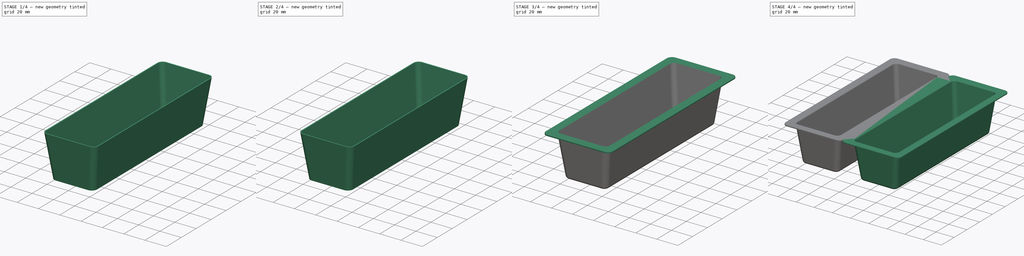
[diagram: build sequence overview — one tinted view per stage of 4, left to right]
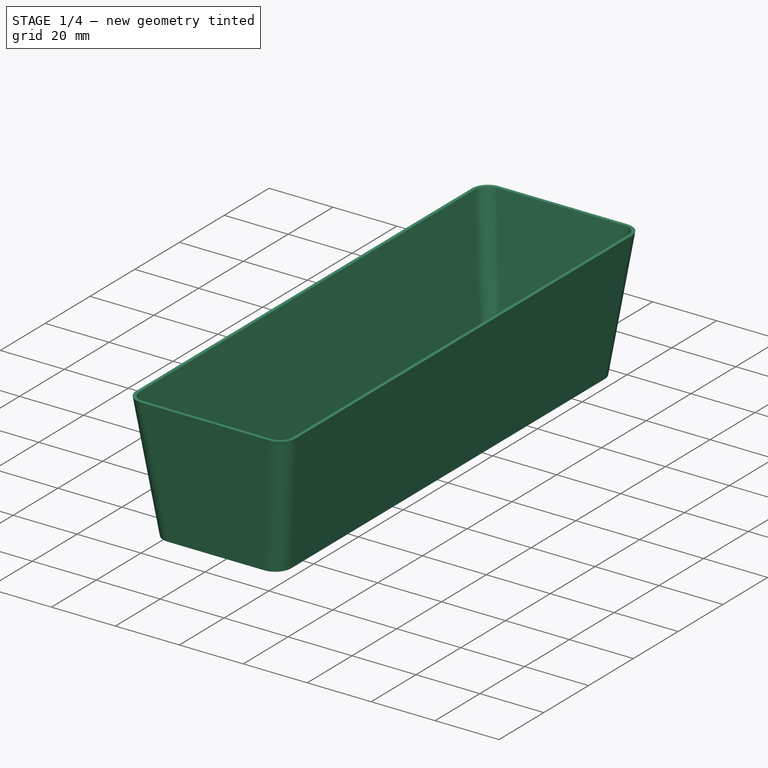
[diagram: stage 1 of 4 — iso view after this stage's code; geometry added in this stage tinted green]
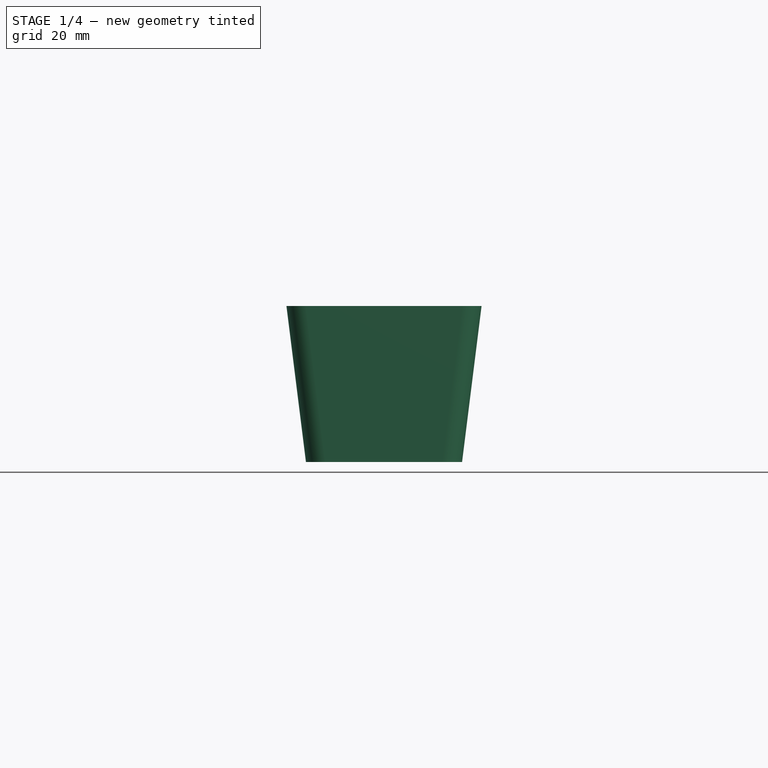
[diagram: stage 1 of 4 — front view after this stage's code; geometry added in this stage tinted green]
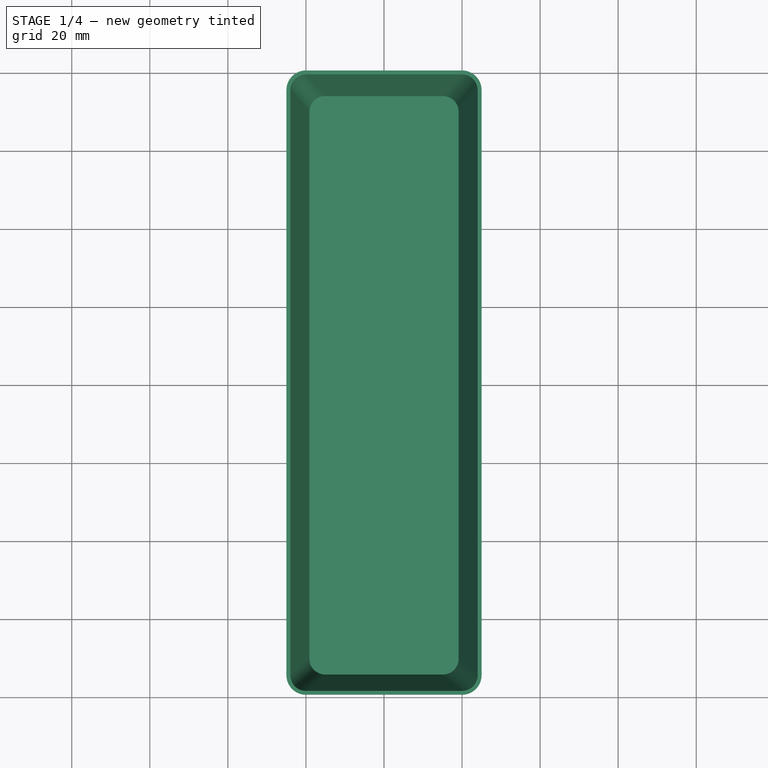
[diagram: stage 1 of 4 — top view after this stage's code; geometry added in this stage tinted green]
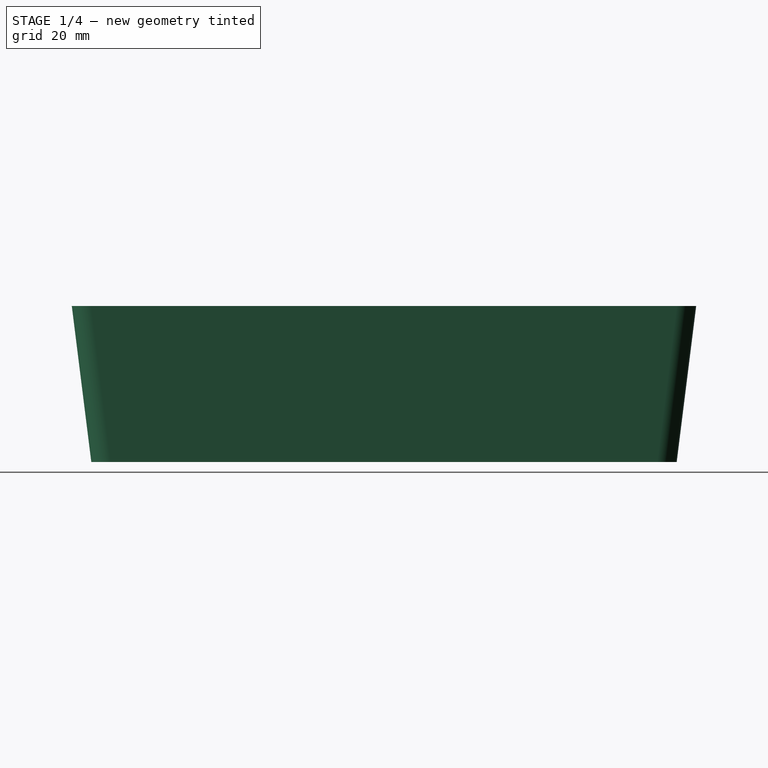
[diagram: stage 1 of 4 — right view after this stage's code; geometry added in this stage tinted green]
FCSTD DOCUMENT  (FreeCAD 0.22R36807 (Git))
Label: pottle
License: All rights reserved
LicenseURL: http://en.wikipedia.org/wiki/All_rights_reserved
objects: Sketcher::SketchObject×3, PartDesign::FeatureSubtractivePython×3, PartDesign::Fillet×2, PartDesign::AdditiveLoft×1, PartDesign::Thickness×1, PartDesign::SubShapeBinder×1, PartDesign::Pad×1, PartDesign::Body×1, Part::FeaturePython×1
note: 22 computed .brp shape members not serialized (recipe doc carries the construction recipe); baked Part::Feature solids carry a one-line shape summary decoded from their .brp

FEATURE [Sketcher::SketchObject] Sketch
  AttachmentSupport = -> [XY_Plane]
  FullyConstrained = true
  MapMode = 5
  sketch-geometry (10):
    g0: LineSegment StartX=-15 StartY=-75 StartZ=0 EndX=15 EndY=-75 EndZ=0
    g1: LineSegment StartX=20 StartY=-70 StartZ=0 EndX=20 EndY=70 EndZ=0
    g2: LineSegment StartX=15 StartY=75 StartZ=0 EndX=-15 EndY=75 EndZ=0
    g3: LineSegment StartX=-20 StartY=70 StartZ=0 EndX=-20 EndY=-70 EndZ=0
    g4: ArcOfCircle CenterX=-15 CenterY=-70 CenterZ=0 NormalX=0 NormalY=0 NormalZ=1 AngleXU=0 Radius=5 StartAngle=3.14159 EndAngle=4.71239
    g5: ArcOfCircle CenterX=15 CenterY=-70 CenterZ=0 NormalX=0 NormalY=0 NormalZ=1 AngleXU=0 Radius=5 StartAngle=4.71239 EndAngle=6.28319
    g6: ArcOfCircle CenterX=15 CenterY=70 CenterZ=0 NormalX=0 NormalY=0 NormalZ=1 AngleXU=0 Radius=5 StartAngle=1.056e-13 EndAngle=1.5708
    g7: ArcOfCircle CenterX=-15 CenterY=70 CenterZ=0 NormalX=0 NormalY=0 NormalZ=1 AngleXU=0 Radius=5 StartAngle=1.5708 EndAngle=3.14159
    g8: GeomPoint X=-20 Y=-75 Z=0
    g9: GeomPoint X=20 Y=75 Z=0
  constraints (23):
    c: Tangent(g0,g4) = -1.5708
    c: Tangent(g0,g5) = -1.5708
    c: Tangent(g1,g5) = -1.5708
    c: Tangent(g1,g6) = -1.5708
    c: Tangent(g2,g6) = -1.5708
    c: Tangent(g2,g7) = -1.5708
    c: Tangent(g3,g7) = -1.5708
    c: Tangent(g3,g4) = -1.5708
    c: Horizontal(g0)
    c: Horizontal(g2)
    c: Vertical(g1)
    c: Vertical(g3)
    c: Equal(g4,g5)
    c: Equal(g5,g6)
    c: Equal(g6,g7)
    c: PointOnObject(g8,g0)
    c: PointOnObject(g8,g3)
    c: PointOnObject(g9,g1)
    c: PointOnObject(g9,g2)
    c: Symmetric(g8,g9,g-1)
    c: Radius(g6) = 5
    c: DistanceX(g8,g9) = 40
    c: DistanceY(g8,g9) = 150
FEATURE [Sketcher::SketchObject] Sketch001
  AttachmentOffset = pos=(0,0,40) rot=(0,0,1;0rad)
  AttachmentSupport = -> [XY_Plane]
  FullyConstrained = true
  MapMode = 5
  Placement = pos=(0,0,40) rot=(0,0,1;0rad)
  sketch-geometry (10):
    g0: LineSegment StartX=-20 StartY=-80 StartZ=0 EndX=20 EndY=-80 EndZ=0
    g1: LineSegment StartX=25 StartY=-75 StartZ=0 EndX=25 EndY=75 EndZ=0
    g2: LineSegment StartX=20 StartY=80 StartZ=0 EndX=-20 EndY=80 EndZ=0
    g3: LineSegment StartX=-25 StartY=75 StartZ=0 EndX=-25 EndY=-75 EndZ=0
    g4: ArcOfCircle CenterX=-20 CenterY=-75 CenterZ=0 NormalX=0 NormalY=0 NormalZ=1 AngleXU=0 Radius=5 StartAngle=3.14159 EndAngle=4.71239
    g5: ArcOfCircle CenterX=20 CenterY=-75 CenterZ=0 NormalX=0 NormalY=0 NormalZ=1 AngleXU=0 Radius=5 StartAngle=4.71239 EndAngle=6.28319
    g6: ArcOfCircle CenterX=20 CenterY=75 CenterZ=0 NormalX=0 NormalY=0 NormalZ=1 AngleXU=0 Radius=5 StartAngle=-9e-16 EndAngle=1.5708
    g7: ArcOfCircle CenterX=-20 CenterY=75 CenterZ=0 NormalX=0 NormalY=0 NormalZ=1 AngleXU=0 Radius=5 StartAngle=1.5708 EndAngle=3.14159
    g8: GeomPoint X=-25 Y=-80 Z=0
    g9: GeomPoint X=25 Y=80 Z=0
  constraints (23):
    c: Tangent(g0,g4) = -1.5708
    c: Tangent(g0,g5) = -1.5708
    c: Tangent(g1,g5) = -1.5708
    c: Tangent(g1,g6) = -1.5708
    c: Tangent(g2,g6) = -1.5708
    c: Tangent(g2,g7) = -1.5708
    c: Tangent(g3,g7) = -1.5708
    c: Tangent(g3,g4) = -1.5708
    c: Horizontal(g0)
    c: Horizontal(g2)
    c: Vertical(g1)
    c: Vertical(g3)
    c: Equal(g4,g5)
    c: Equal(g5,g6)
    c: Equal(g6,g7)
    c: PointOnObject(g8,g0)
    c: PointOnObject(g8,g3)
    c: PointOnObject(g9,g1)
    c: PointOnObject(g9,g2)
    c: Radius(g6) = 5
    c: Symmetric(g8,g9,g-1)
    c: DistanceX(g8,g9) = 50
    c: DistanceY(g8,g9) = 160
FEATURE [PartDesign::AdditiveLoft] AdditiveLoft
  Closed = false
  Profile = -> Sketch
  Ruled = false
  Sections = -> [Sketch001]
  Suppressed = false
FEATURE [Sketcher::SketchObject] Sketch002
  AttachmentOffset = pos=(0,0,40) rot=(0,0,1;0rad)
  AttachmentSupport = -> [XY_Plane]
  ExternalGeometry = -> [Sketch001]
  FullyConstrained = true
  MapMode = 5
  Placement = pos=(0,0,40) rot=(0,0,1;0rad)
  expr: AttachmentOffset = <<Sketch001>>.AttachmentOffset
  sketch-geometry (12):
    g0: LineSegment StartX=-27 StartY=-87 StartZ=0 EndX=27 EndY=-87 EndZ=0
    g1: LineSegment StartX=32 StartY=-82 StartZ=0 EndX=32 EndY=82 EndZ=0
    g2: LineSegment StartX=27 StartY=87 StartZ=0 EndX=-27 EndY=87 EndZ=0
    g3: LineSegment StartX=-32 StartY=82 StartZ=0 EndX=-32 EndY=-82 EndZ=0
    g4: ArcOfCircle CenterX=-27 CenterY=-82 CenterZ=0 NormalX=0 NormalY=0 NormalZ=1 AngleXU=0 Radius=5 StartAngle=3.14159 EndAngle=4.71239
    g5: ArcOfCircle CenterX=27 CenterY=-82 CenterZ=0 NormalX=0 NormalY=0 NormalZ=1 AngleXU=0 Radius=5 StartAngle=4.71239 EndAngle=6.28319
    g6: ArcOfCircle CenterX=27 CenterY=82 CenterZ=0 NormalX=0 NormalY=0 NormalZ=1 AngleXU=0 Radius=5 StartAngle=1.7e-15 EndAngle=1.5708
    g7: ArcOfCircle CenterX=-27 CenterY=82 CenterZ=0 NormalX=0 NormalY=0 NormalZ=1 AngleXU=0 Radius=5 StartAngle=1.5708 EndAngle=3.14159
    g8: GeomPoint X=-32 Y=-87 Z=0
    g9: GeomPoint X=32 Y=87 Z=0
    g10: LineSegment StartX=20 StartY=80 StartZ=0 EndX=25 EndY=80 EndZ=0
    g11: LineSegment StartX=25 StartY=80 StartZ=0 EndX=25 EndY=75 EndZ=0
  constraints (26):
    c: Tangent(g0,g4) = -1.5708
    c: Tangent(g0,g5) = -1.5708
    c: Tangent(g1,g5) = -1.5708
    c: Tangent(g1,g6) = -1.5708
    c: Tangent(g2,g6) = -1.5708
    c: Tangent(g2,g7) = -1.5708
    c: Tangent(g3,g7) = -1.5708
    c: Tangent(g3,g4) = -1.5708
    c: Horizontal(g0)
    c: Horizontal(g2)
    c: Vertical(g1)
    c: Vertical(g3)
    c: Equal(g4,g5)
    c: Equal(g5,g6)
    c: Equal(g6,g7)
    c: PointOnObject(g8,g0)
    c: PointOnObject(g8,g3)
    c: PointOnObject(g9,g1)
    c: PointOnObject(g9,g2)
    c: Radius(g5) = 5
    c: Symmetric(g8,g9,g-1)
    c: Coincident(g10,g11)
    c: Tangent(g-3,g10) = 1.5708
    c: Tangent(g11,g-3) = 1.5708
    c: DistanceX(g10,g9) = 7
    c: DistanceY(g10,g9) = 7
FEATURE [PartDesign::Thickness] Thickness
  Base = -> AdditiveLoft [Face3]
  BaseFeature = -> AdditiveLoft
  Intersection = false
  Join = 0
  Mode = 0
  Reversed = true
  SupportTransform = false
  Suppressed = false
  Value = 1
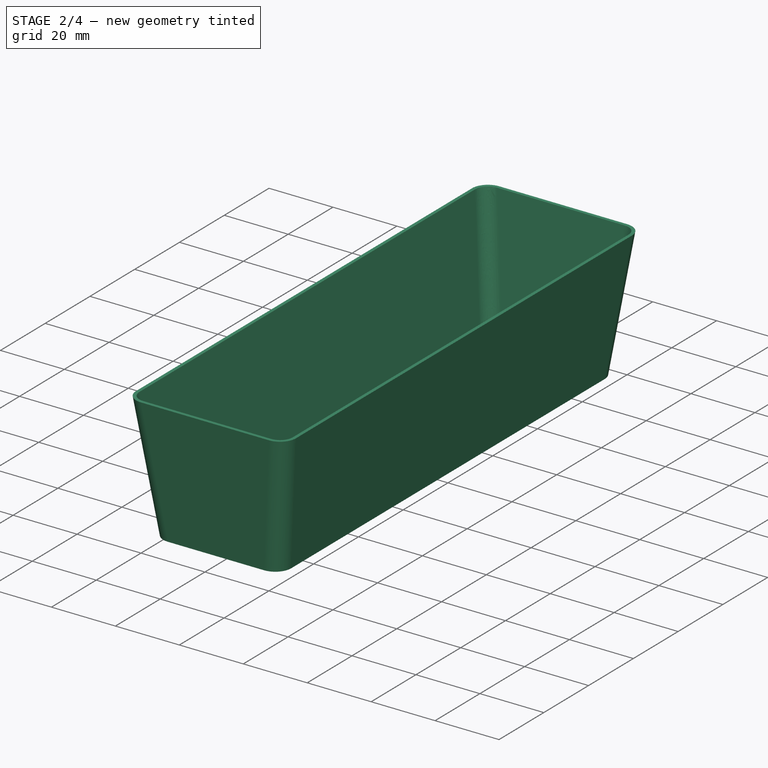
[diagram: stage 2 of 4 — iso view after this stage's code; geometry added in this stage tinted green]
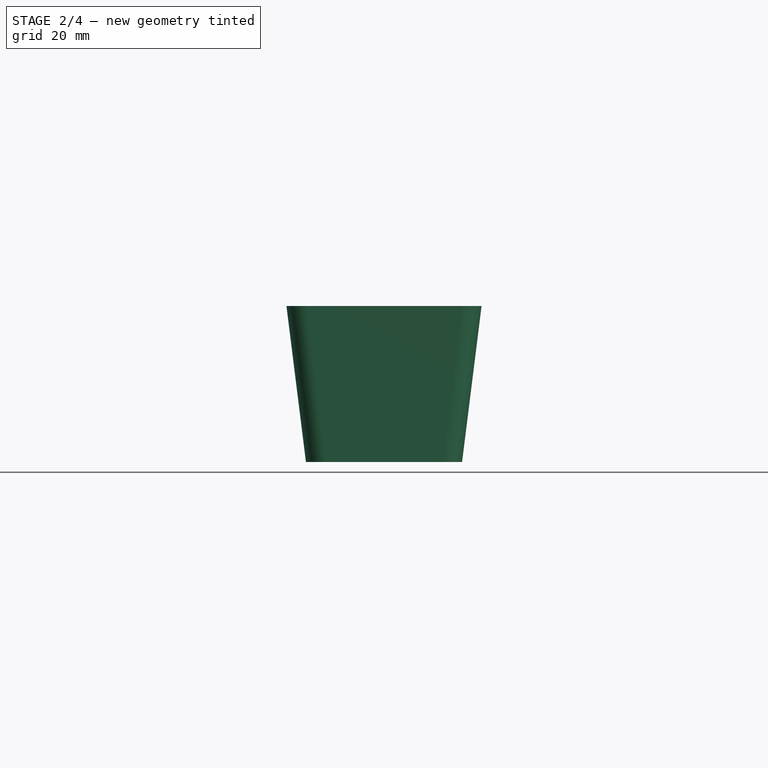
[diagram: stage 2 of 4 — front view after this stage's code; geometry added in this stage tinted green]
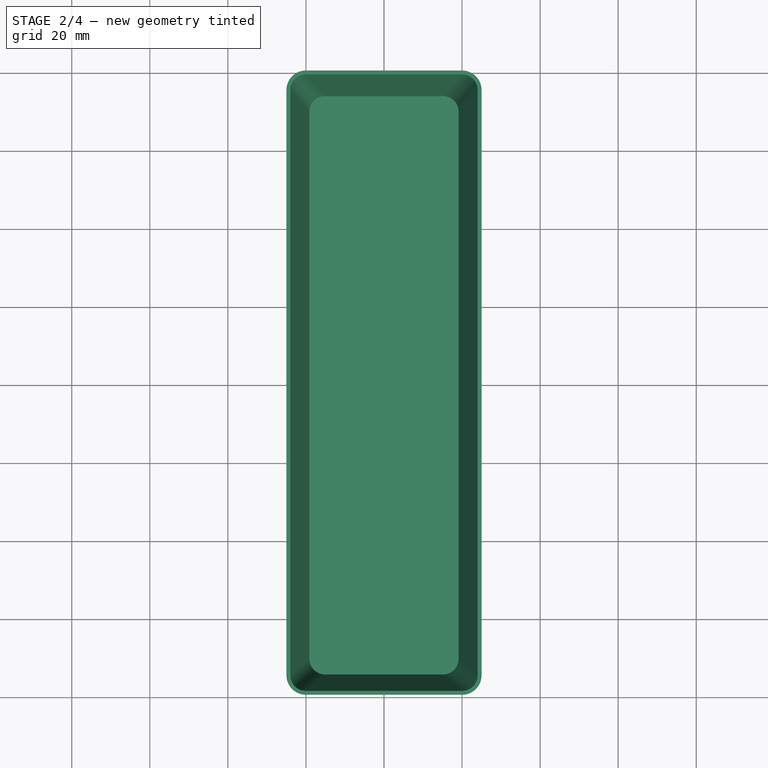
[diagram: stage 2 of 4 — top view after this stage's code; geometry added in this stage tinted green]
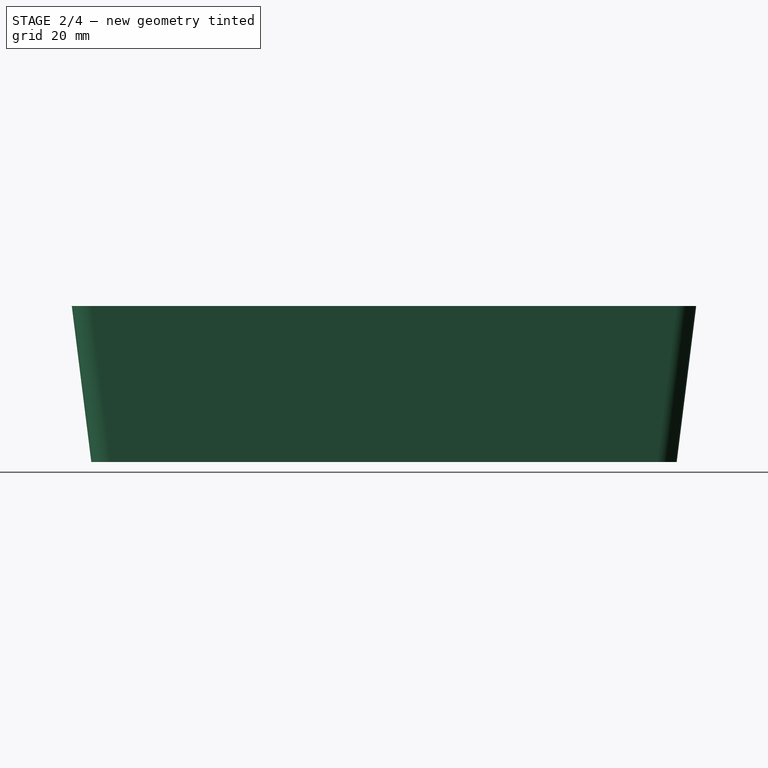
[diagram: stage 2 of 4 — right view after this stage's code; geometry added in this stage tinted green]
FEATURE [PartDesign::SubShapeBinder] Binder
  BindCopyOnChange = 0
  BindMode = 0
  ClaimChildren = false
  Context = -> Body [Binder.]
  Fuse = false
  MakeFace = true
  Offset = -1
  OffsetFill = false
  OffsetIntersection = false
  OffsetJoinType = 0
  OffsetOpenResult = false
  PartialLoad = false
  Relative = true
  Support = -> [AdditiveLoft[Sketch001.]]
  _Version = 2
FEATURE [PartDesign::FeatureSubtractivePython] PDW_Common_Sub  # link proxy (typed FeaturePython)
  BaseFeature = -> Thickness
  Body = Body
  ClaimChildren = true
  EditPlacementAdjustments = false
  Enabled = 0
  LinkedObject = -> Thickness
  MeshTolerance = 0.1
  PatternBase = -> AdditiveLoft
  PatternBaseOffset = 0
  PatternBaseScale = 1
  PatternBaseScaleXYZ = (1,1,1)
  PatternOffsetCut = false
  PatternOffsetIntersection = false
  PatternOffsetJoin = 0
  PatternOffsetMode = 0
  PatternOffsetSelfIntersection = false
  PatternOperation = 4
  PatternOperationDefault = Common
  PatternScaleCut = false
  PatternShapeOffset = 0
  PatternShapeScale = 1
  PatternShapeScaleXYZ = (1,1,1)
  PatternTool = -> Thickness
  PatternToolOffset = 0
  PatternToolScale = 1
  PatternToolScaleXYZ = (1,1,1)
  RefineMesh = true
  ShapeManagement = 1
  ShowMeshProps = false
  ShowOffsetProps = false
  ShowScaleProps = false
  ShowWarnings = true
  Suppressed = false
  TipBase = -> AdditiveLoft
  TipBaseOffset = 0
  TipBaseScale = 1
  TipBaseScaleXYZ = (1,1,1)
  TipOffsetCut = false
  TipOffsetIntersection = false
  TipOffsetJoin = 0
  TipOffsetMode = 0
  TipOffsetSelfIntersection = false
  TipOperation = 1
  TipOperationDefault = Common
  TipScaleCut = false
  TipShapeOffset = 0
  TipShapeScale = 1
  TipShapeScaleXYZ = (1,1,1)
  TipTool = -> Thickness
  TipToolOffset = 0
  TipToolScale = 1
  TipToolScaleXYZ = (1,1,1)
  Type = Subtractive
  UsePatternBaseAddSubShape = true
  UsePatternToolAddSubShape = false
  UseTipBaseAddSubShape = true
  UseTipToolAddSubShape = false
  Version = 0.2023.08.13
FEATURE [PartDesign::FeatureSubtractivePython] PDW_Sub  # link proxy (typed FeaturePython)
  BaseFeature = -> PDW_Common_Sub
  Body = Body
  ClaimChildren = false
  EditPlacementAdjustments = false
  Enabled = 1
  LinkedObject = -> AdditiveLoft
  MeshTolerance = 0.1
  PatternBase = -> PDW_Common_Sub
  PatternBaseOffset = 0
  PatternBaseScale = 1
  PatternBaseScaleXYZ = (1,1,1)
  PatternOffsetCut = false
  PatternOffsetIntersection = false
  PatternOffsetJoin = 0
  PatternOffsetMode = 0
  PatternOffsetSelfIntersection = false
  PatternOperation = 0
  PatternOperationDefault = None
  PatternScaleCut = false
  PatternShapeOffset = 0
  PatternShapeScale = 1
  PatternShapeScaleXYZ = (1,1,1)
  PatternTool = -> AdditiveLoft
  PatternToolOffset = 0
  PatternToolScale = 1
  PatternToolScaleXYZ = (1,1,1)
  RefineMesh = true
  ShapeManagement = 1
  ShowMeshProps = false
  ShowOffsetProps = false
  ShowScaleProps = false
  ShowWarnings = true
  Suppressed = false
  TipBase = -> AdditiveLoft
  TipBaseOffset = 0
  TipBaseScale = 1
  TipBaseScaleXYZ = (1,1,1)
  TipOffsetCut = false
  TipOffsetIntersection = false
  TipOffsetJoin = 0
  TipOffsetMode = 0
  TipOffsetSelfIntersection = false
  TipOperation = 1
  TipOperationDefault = Cut
  TipScaleCut = false
  TipShapeOffset = 0
  TipShapeScale = 1
  TipShapeScaleXYZ = (1,1,1)
  TipTool = -> PDW_Common_Sub
  TipToolOffset = 0
  TipToolScale = 1
  TipToolScaleXYZ = (1,1,1)
  Type = Subtractive
  UsePatternBaseAddSubShape = false
  UsePatternToolAddSubShape = true
  UseTipBaseAddSubShape = true
  UseTipToolAddSubShape = true
  Version = 0.2023.08.13
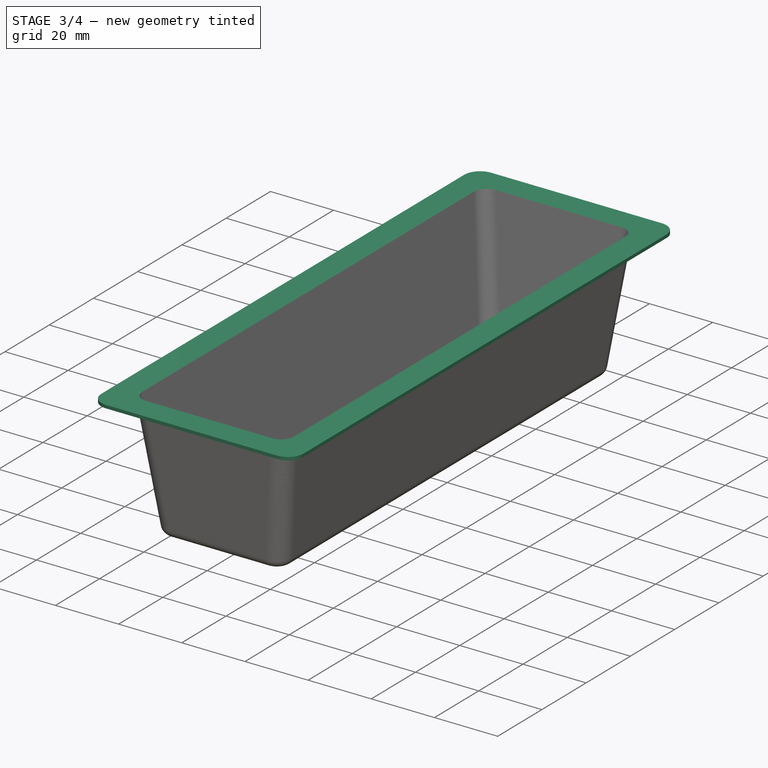
[diagram: stage 3 of 4 — iso view after this stage's code; geometry added in this stage tinted green]
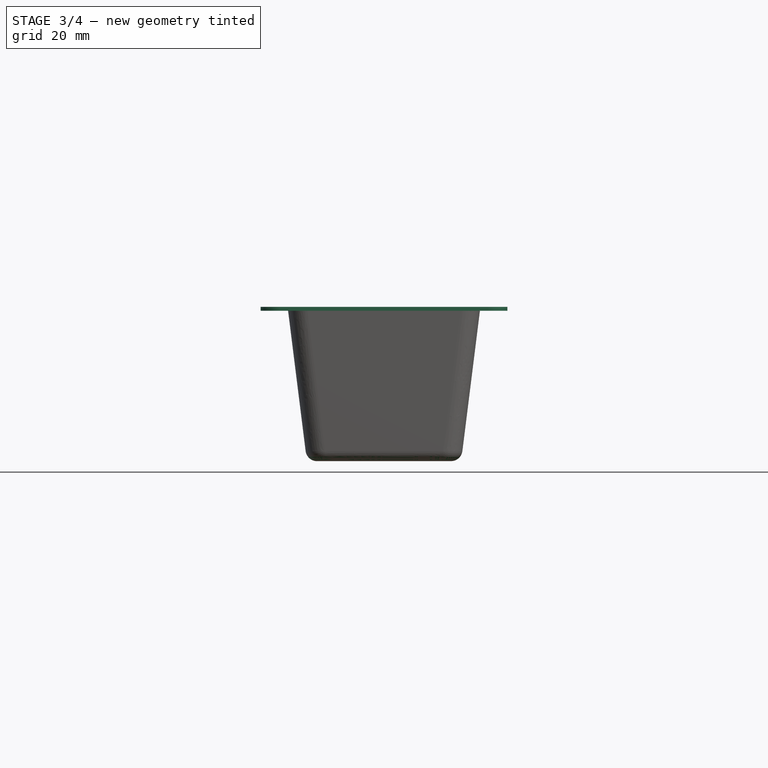
[diagram: stage 3 of 4 — front view after this stage's code; geometry added in this stage tinted green]
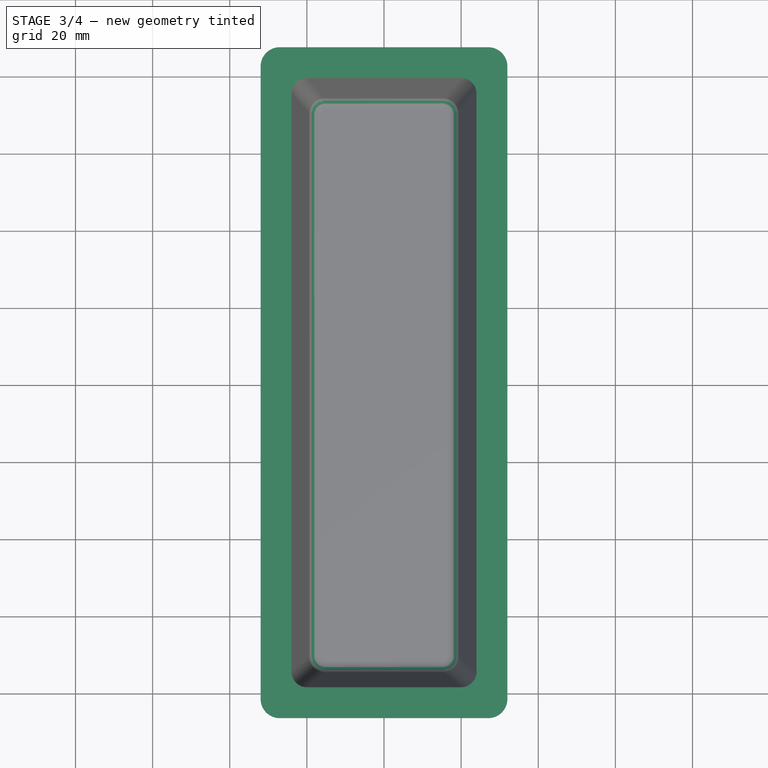
[diagram: stage 3 of 4 — top view after this stage's code; geometry added in this stage tinted green]
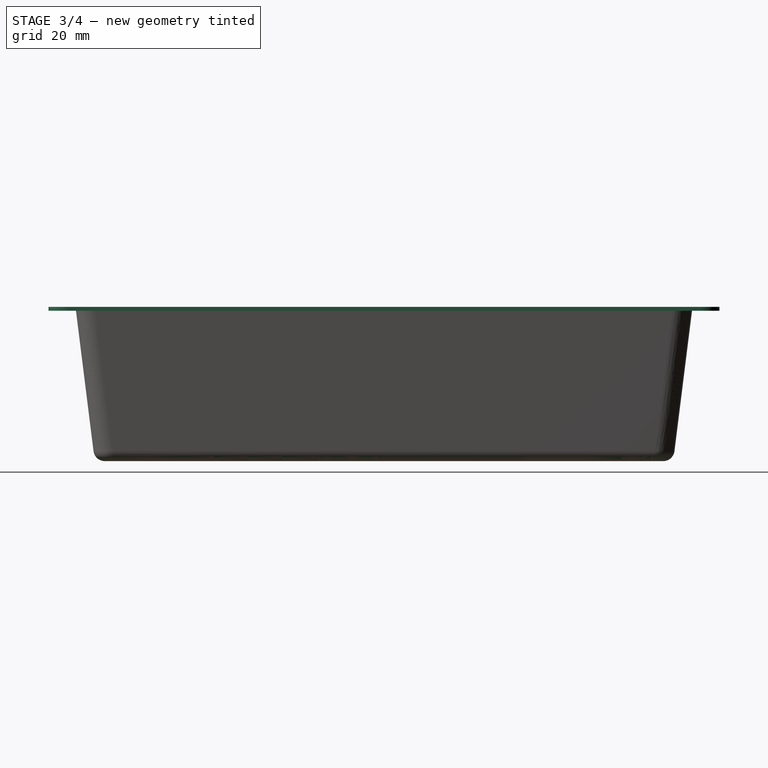
[diagram: stage 3 of 4 — right view after this stage's code; geometry added in this stage tinted green]
FEATURE [PartDesign::Pad] Pad
  BaseFeature = -> PDW_Sub
  Direction = (0,0,1)
  Length = 1
  Length2 = 10
  Profile = -> Sketch002
  ReferenceAxis = -> Sketch002 [N_Axis]
  Refine = true
  Reversed = true
  Suppressed = false
  Type = 0
FEATURE [PartDesign::FeatureSubtractivePython] PDW_Sub001  # link proxy (typed FeaturePython)
  BaseFeature = -> Pad
  Body = Body
  ClaimChildren = false
  EditPlacementAdjustments = false
  Enabled = 1
  LinkedObject = -> PDW_Common_Sub
  MeshTolerance = 0.1
  PatternBase = -> Pad
  PatternBaseOffset = 0
  PatternBaseScale = 1
  PatternBaseScaleXYZ = (1,1,1)
  PatternOffsetCut = false
  PatternOffsetIntersection = false
  PatternOffsetJoin = 0
  PatternOffsetMode = 0
  PatternOffsetSelfIntersection = false
  PatternOperation = 0
  PatternOperationDefault = None
  PatternScaleCut = false
  PatternShapeOffset = 0
  PatternShapeScale = 1
  PatternShapeScaleXYZ = (1,1,1)
  PatternTool = -> PDW_Common_Sub
  PatternToolOffset = 0
  PatternToolScale = 1
  PatternToolScaleXYZ = (1,1,1)
  Refine = true
  RefineMesh = true
  ShapeManagement = 0
  ShowMeshProps = false
  ShowOffsetProps = false
  ShowScaleProps = false
  ShowWarnings = true
  Suppressed = false
  TipBase = -> Pad
  TipBaseOffset = 0
  TipBaseScale = 1
  TipBaseScaleXYZ = (1,1,1)
  TipOffsetCut = false
  TipOffsetIntersection = false
  TipOffsetJoin = 0
  TipOffsetMode = 0
  TipOffsetSelfIntersection = false
  TipOperation = 1
  TipOperationDefault = Cut
  TipScaleCut = false
  TipShapeOffset = 0
  TipShapeScale = 1
  TipShapeScaleXYZ = (1,1,1)
  TipTool = -> PDW_Common_Sub
  TipToolOffset = 0
  TipToolScale = 1
  TipToolScaleXYZ = (1,1,1)
  Type = Subtractive
  UsePatternBaseAddSubShape = false
  UsePatternToolAddSubShape = true
  UseTipBaseAddSubShape = false
  UseTipToolAddSubShape = true
  Version = 0.2023.08.13
FEATURE [PartDesign::Fillet] Fillet
  Base = -> PDW_Sub001 [Edge82,Edge57]
  BaseFeature = -> PDW_Sub001
  Radius = 3
  SupportTransform = false
  Suppressed = false
  UseAllEdges = false
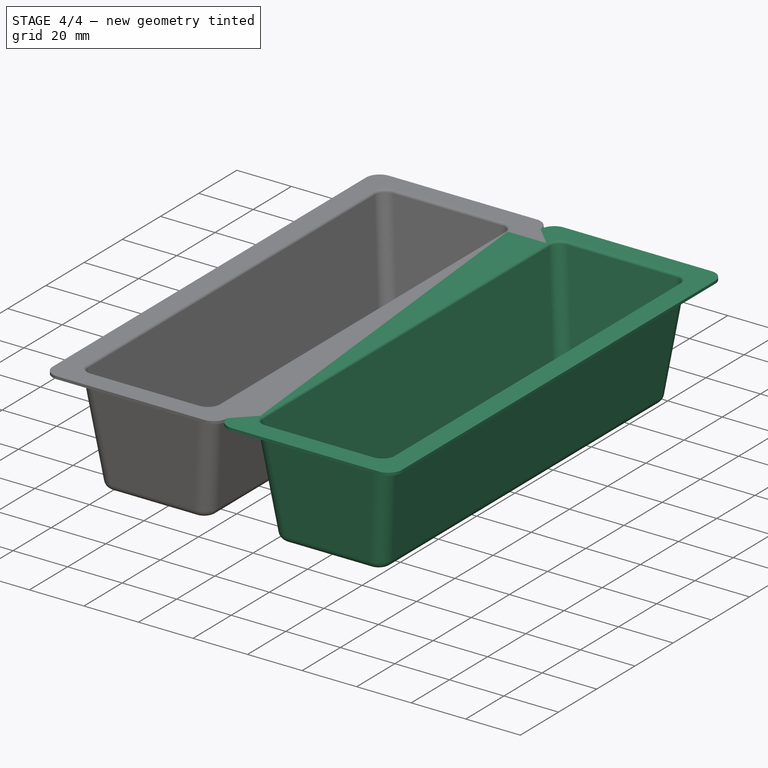
[diagram: stage 4 of 4 — iso view after this stage's code; geometry added in this stage tinted green]
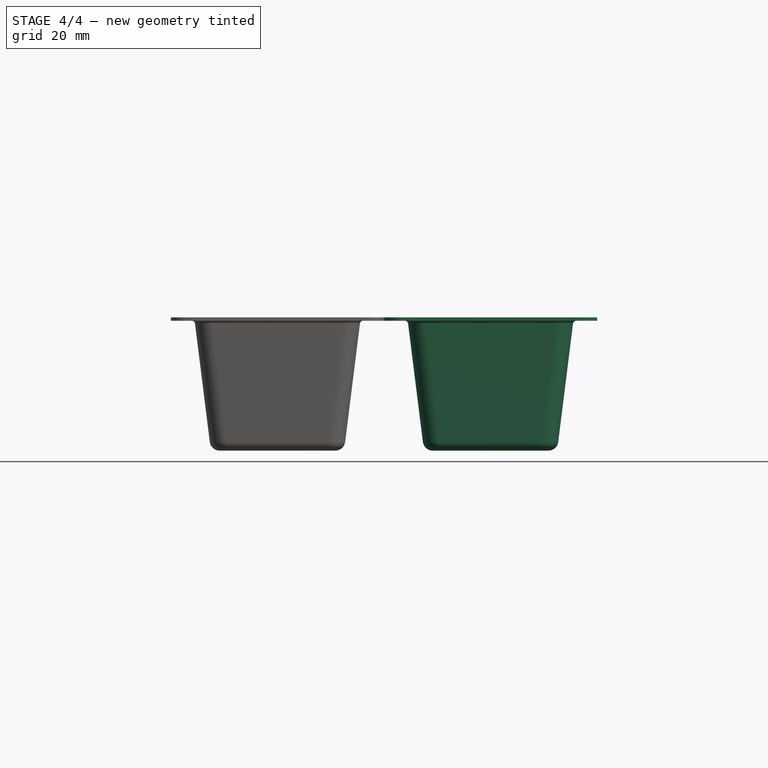
[diagram: stage 4 of 4 — front view after this stage's code; geometry added in this stage tinted green]
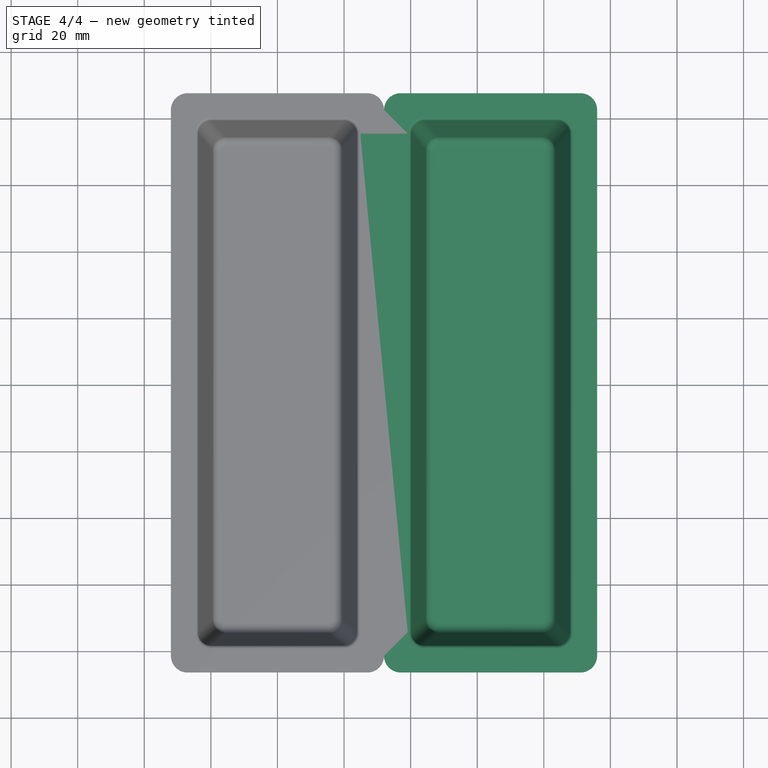
[diagram: stage 4 of 4 — top view after this stage's code; geometry added in this stage tinted green]
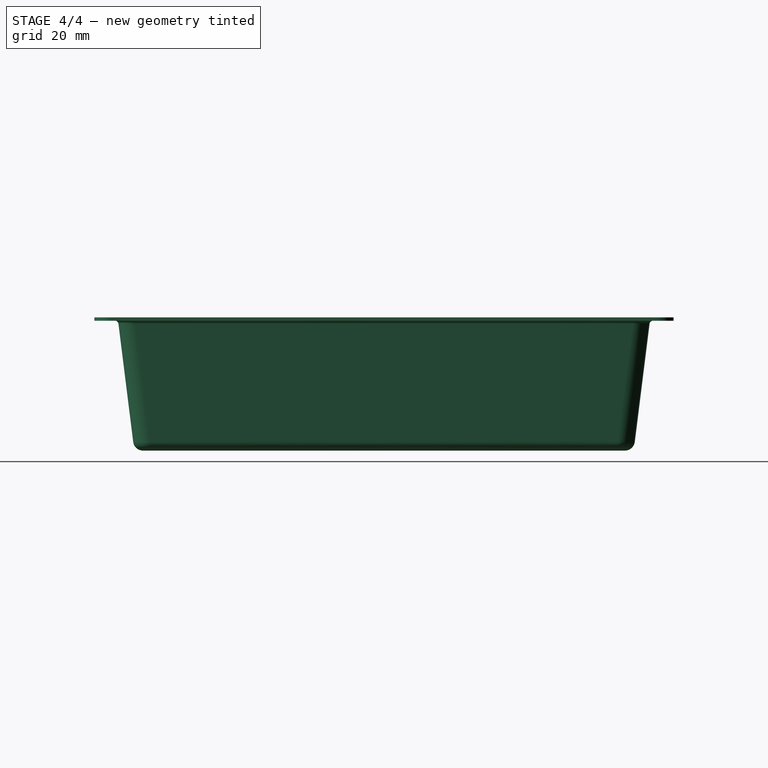
[diagram: stage 4 of 4 — right view after this stage's code; geometry added in this stage tinted green]
FEATURE [PartDesign::Fillet] Fillet001
  Base = -> Fillet [Edge71,Edge7]
  BaseFeature = -> Fillet
  Radius = 1
  SupportTransform = false
  Suppressed = false
  UseAllEdges = false
FEATURE [PartDesign::Body] Body
  Group = -> [Sketch,Sketch001,AdditiveLoft,Thickness,PDW_Common_Sub,PDW_Sub,Sketch002,Pad,PDW_Sub001,Binder,Fillet,Fillet001]
  Origin = -> Origin
  Tip = -> Fillet001
FEATURE [Part::FeaturePython] Array  # Draft array (typed FeaturePython)
  Angle = 360
  ArrayType = 0
  Axis = (0,0,1)
  Base = -> Body
  Center = (0,0,0)
  Count = 2
  Fuse = true
  IntervalAxis = (0,0,0)
  IntervalX = (64,0,0)
  IntervalY = (0,100,0)
  IntervalZ = (0,0,100)
  NumberCircles = 3
  NumberPolar = 5
  NumberX = 2
  NumberY = 1
  NumberZ = 1
  RadialDistance = 50
  Symmetry = 1
  TangentialDistance = 25
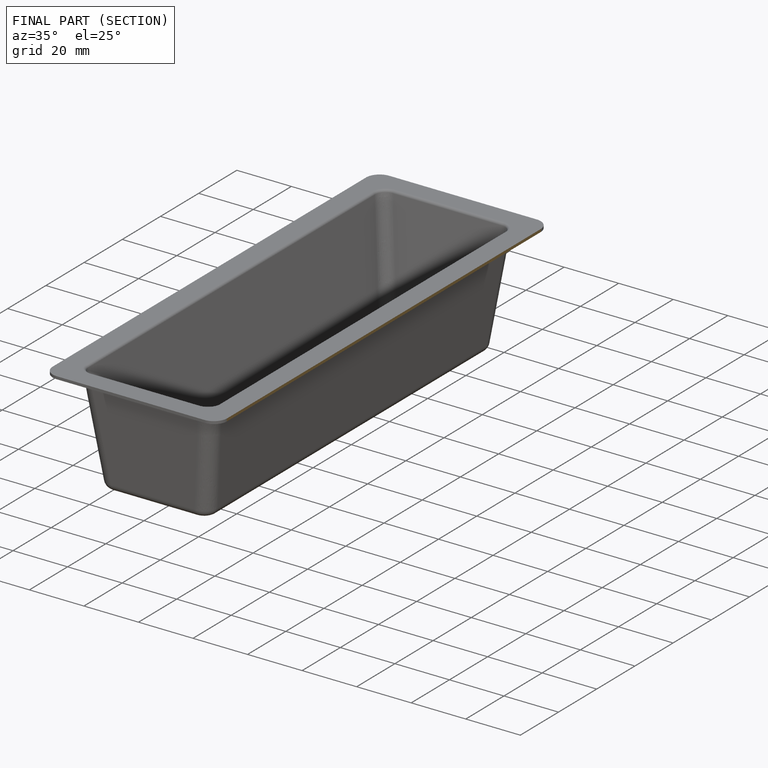
[diagram: finished part — half-section view (interior)]
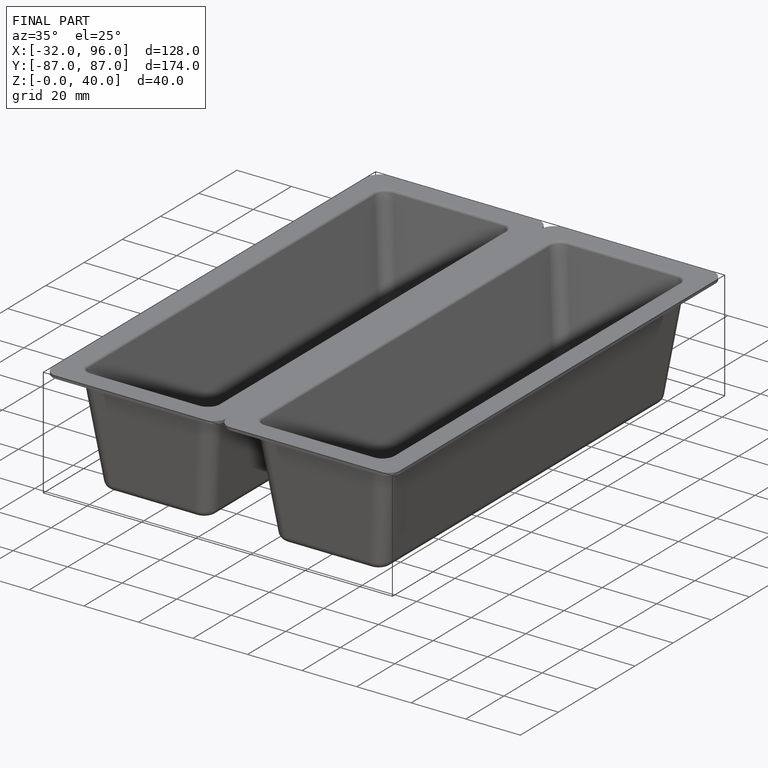
[diagram: finished part — iso view with bounding-box wireframe]
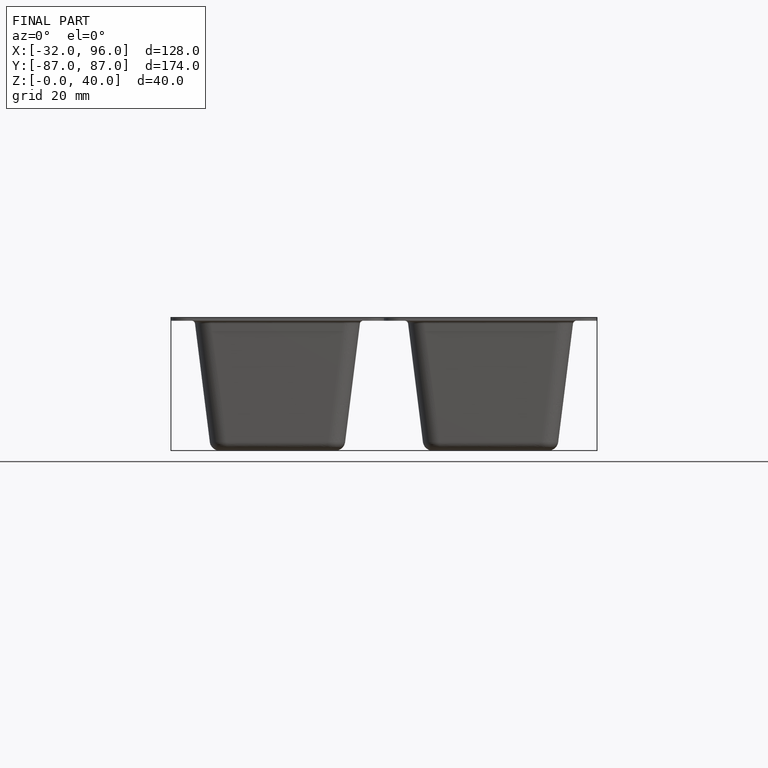
[diagram: finished part — front view with bounding-box wireframe]
